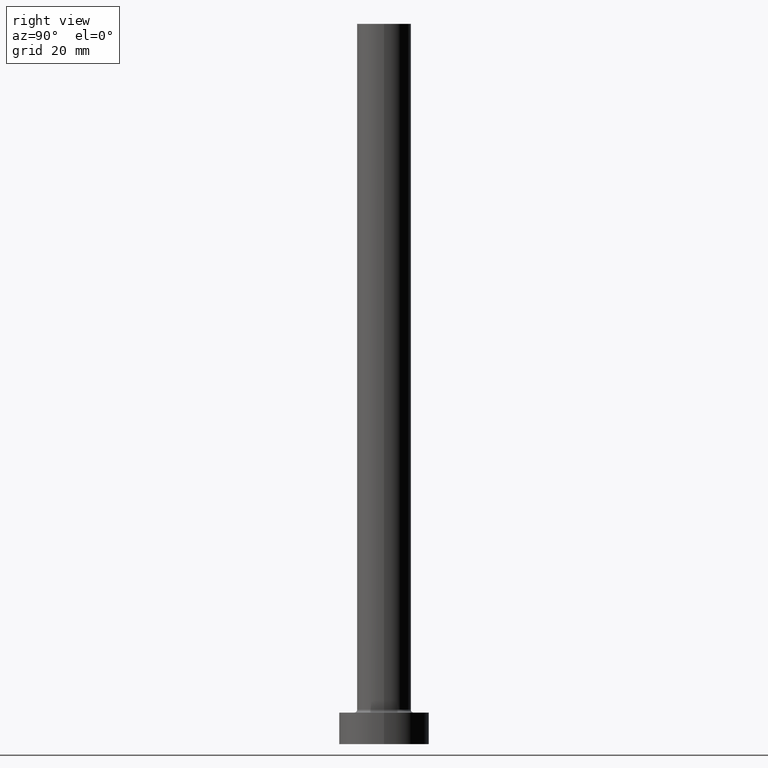
[diagram: clean part render]
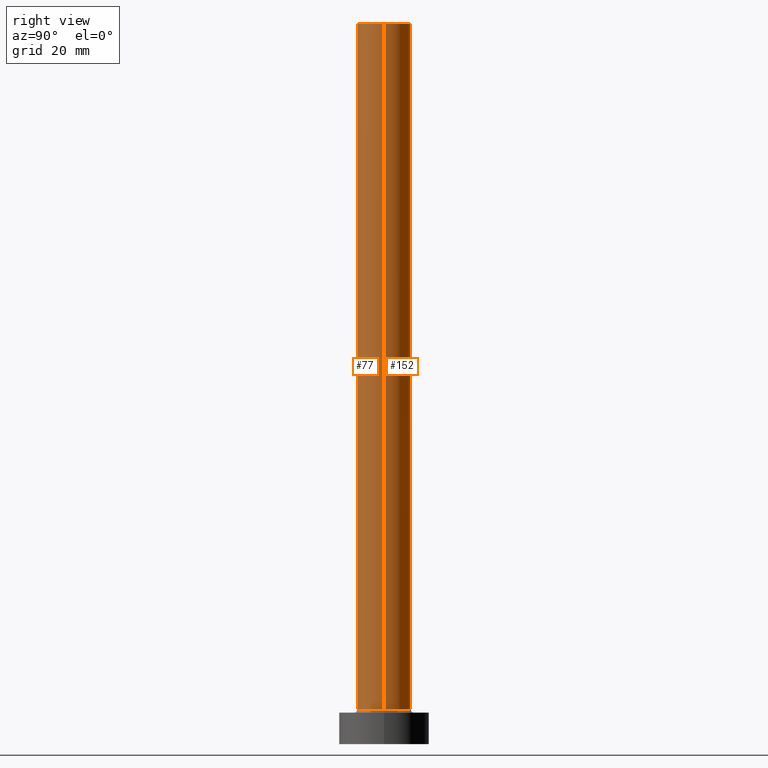
[diagram: same view with one multi-face feature highlighted, each face labeled with its STEP entity id]
A machine part, right view. The highlighted faces form ONE feature: a constant-radius fillet chain: 2 tangent blend faces with common blend radius 6 mm. The faces share edges in the B-rep.
Their STEP definitions:
[1] entity #77 (Cylinder):
#2 = CARTESIAN_POINT ( 'NONE',  ( 0.000000000000000000, 0.000000000000000000, 160.0000000000000000 ) ) ;
#3 = CARTESIAN_POINT ( 'NONE',  ( 0.000000000000000000, 0.000000000000000000, 7.700000000000012612 ) ) ;
#37 = VECTOR ( 'NONE', #140, 1000.000000000000000 ) ;
#68 = DIRECTION ( 'NONE',  ( 0.000000000000000000, 0.000000000000000000, 1.000000000000000000 ) ) ;
#72 = LINE ( 'NONE', #358, #37 ) ;
#77 = ADVANCED_FACE ( 'NONE', ( #130 ), #309, .T. ) ;
#88 = DIRECTION ( 'NONE',  ( 1.000000000000000000, 0.000000000000000000, 0.000000000000000000 ) ) ;
#102 = CARTESIAN_POINT ( 'NONE',  ( 6.000000000000000888, 7.347880794884120722E-16, 160.0000000000000000 ) ) ;
#103 = EDGE_CURVE ( 'NONE', #192, #104, #444, .T. ) ;
#104 = VERTEX_POINT ( 'NONE', #102 ) ;
#130 = FACE_OUTER_BOUND ( 'NONE', #454, .T. ) ;
#140 = DIRECTION ( 'NONE',  ( -0.000000000000000000, -0.000000000000000000, -1.000000000000000000 ) ) ;
#154 = ORIENTED_EDGE ( 'NONE', *, *, #418, .T. ) ;
#169 = AXIS2_PLACEMENT_3D ( 'NONE', #350, #311, #450 ) ;
#174 = VERTEX_POINT ( 'NONE', #290 ) ;
#192 = VERTEX_POINT ( 'NONE', #229 ) ;
#218 = CARTESIAN_POINT ( 'NONE',  ( 6.000000000000000888, 7.347880794884120722E-16, 160.0000000000000000 ) ) ;
#225 = EDGE_CURVE ( 'NONE', #104, #281, #455, .T. ) ;
#229 = CARTESIAN_POINT ( 'NONE',  ( -6.000000000000000888, 0.000000000000000000, 160.0000000000000000 ) ) ;
#281 = VERTEX_POINT ( 'NONE', #330 ) ;
#290 = CARTESIAN_POINT ( 'NONE',  ( -6.000000000000000888, 0.000000000000000000, 7.700000000000012612 ) ) ;
#309 = CYLINDRICAL_SURFACE ( 'NONE', #169, 6.000000000000000888 ) ;
#311 = DIRECTION ( 'NONE',  ( -0.000000000000000000, -0.000000000000000000, -1.000000000000000000 ) ) ;
#313 = AXIS2_PLACEMENT_3D ( 'NONE', #3, #404, #88 ) ;
#330 = CARTESIAN_POINT ( 'NONE',  ( 6.000000000000000888, 7.347880794884120722E-16, 7.700000000000012612 ) ) ;
#350 = CARTESIAN_POINT ( 'NONE',  ( 0.000000000000000000, 0.000000000000000000, 160.0000000000000000 ) ) ;
#354 = DIRECTION ( 'NONE',  ( 1.000000000000000000, 0.000000000000000000, 0.000000000000000000 ) ) ;
#358 = CARTESIAN_POINT ( 'NONE',  ( -6.000000000000000888, 0.000000000000000000, 160.0000000000000000 ) ) ;
#375 = VECTOR ( 'NONE', #392, 1000.000000000000000 ) ;
#383 = ORIENTED_EDGE ( 'NONE', *, *, #225, .F. ) ;
#392 = DIRECTION ( 'NONE',  ( -0.000000000000000000, -0.000000000000000000, -1.000000000000000000 ) ) ;
#401 = EDGE_CURVE ( 'NONE', #192, #174, #72, .T. ) ;
#404 = DIRECTION ( 'NONE',  ( 0.000000000000000000, 0.000000000000000000, 1.000000000000000000 ) ) ;
#418 = EDGE_CURVE ( 'NONE', #174, #281, #452, .T. ) ;
#421 = AXIS2_PLACEMENT_3D ( 'NONE', #2, #68, #354 ) ;
#431 = ORIENTED_EDGE ( 'NONE', *, *, #401, .T. ) ;
#444 = CIRCLE ( 'NONE', #421, 6.000000000000000888 ) ;
#448 = ORIENTED_EDGE ( 'NONE', *, *, #103, .F. ) ;
#450 = DIRECTION ( 'NONE',  ( -1.000000000000000000, 0.000000000000000000, 0.000000000000000000 ) ) ;
#452 = CIRCLE ( 'NONE', #313, 6.000000000000000888 ) ;
#454 = EDGE_LOOP ( 'NONE', ( #383, #448, #431, #154 ) ) ;
#455 = LINE ( 'NONE', #218, #375 ) ;
[2] entity #152 (Cylinder):
#24 = DIRECTION ( 'NONE',  ( 0.000000000000000000, 0.000000000000000000, 1.000000000000000000 ) ) ;
#37 = VECTOR ( 'NONE', #140, 1000.000000000000000 ) ;
#45 = CARTESIAN_POINT ( 'NONE',  ( 0.000000000000000000, 0.000000000000000000, 160.0000000000000000 ) ) ;
#72 = LINE ( 'NONE', #358, #37 ) ;
#74 = ORIENTED_EDGE ( 'NONE', *, *, #89, .T. ) ;
#89 = EDGE_CURVE ( 'NONE', #281, #174, #297, .T. ) ;
#90 = FACE_OUTER_BOUND ( 'NONE', #436, .T. ) ;
#102 = CARTESIAN_POINT ( 'NONE',  ( 6.000000000000000888, 7.347880794884120722E-16, 160.0000000000000000 ) ) ;
#104 = VERTEX_POINT ( 'NONE', #102 ) ;
#128 = AXIS2_PLACEMENT_3D ( 'NONE', #134, #277, #137 ) ;
#134 = CARTESIAN_POINT ( 'NONE',  ( 0.000000000000000000, 0.000000000000000000, 7.700000000000012612 ) ) ;
#137 = DIRECTION ( 'NONE',  ( 1.000000000000000000, 0.000000000000000000, 0.000000000000000000 ) ) ;
#140 = DIRECTION ( 'NONE',  ( -0.000000000000000000, -0.000000000000000000, -1.000000000000000000 ) ) ;
#149 = DIRECTION ( 'NONE',  ( -0.000000000000000000, -0.000000000000000000, -1.000000000000000000 ) ) ;
#152 = ADVANCED_FACE ( 'NONE', ( #90 ), #196, .T. ) ;
#170 = CIRCLE ( 'NONE', #411, 6.000000000000000888 ) ;
#174 = VERTEX_POINT ( 'NONE', #290 ) ;
#180 = AXIS2_PLACEMENT_3D ( 'NONE', #45, #149, #303 ) ;
#192 = VERTEX_POINT ( 'NONE', #229 ) ;
#196 = CYLINDRICAL_SURFACE ( 'NONE', #180, 6.000000000000000888 ) ;
#202 = DIRECTION ( 'NONE',  ( 1.000000000000000000, 0.000000000000000000, 0.000000000000000000 ) ) ;
#218 = CARTESIAN_POINT ( 'NONE',  ( 6.000000000000000888, 7.347880794884120722E-16, 160.0000000000000000 ) ) ;
#225 = EDGE_CURVE ( 'NONE', #104, #281, #455, .T. ) ;
#229 = CARTESIAN_POINT ( 'NONE',  ( -6.000000000000000888, 0.000000000000000000, 160.0000000000000000 ) ) ;
#265 = ORIENTED_EDGE ( 'NONE', *, *, #373, .F. ) ;
#277 = DIRECTION ( 'NONE',  ( 0.000000000000000000, 0.000000000000000000, 1.000000000000000000 ) ) ;
#281 = VERTEX_POINT ( 'NONE', #330 ) ;
#290 = CARTESIAN_POINT ( 'NONE',  ( -6.000000000000000888, 0.000000000000000000, 7.700000000000012612 ) ) ;
#292 = ORIENTED_EDGE ( 'NONE', *, *, #225, .T. ) ;
#297 = CIRCLE ( 'NONE', #128, 6.000000000000000888 ) ;
#303 = DIRECTION ( 'NONE',  ( -1.000000000000000000, 0.000000000000000000, 0.000000000000000000 ) ) ;
#310 = CARTESIAN_POINT ( 'NONE',  ( 0.000000000000000000, 0.000000000000000000, 160.0000000000000000 ) ) ;
#330 = CARTESIAN_POINT ( 'NONE',  ( 6.000000000000000888, 7.347880794884120722E-16, 7.700000000000012612 ) ) ;
#331 = ORIENTED_EDGE ( 'NONE', *, *, #401, .F. ) ;
#358 = CARTESIAN_POINT ( 'NONE',  ( -6.000000000000000888, 0.000000000000000000, 160.0000000000000000 ) ) ;
#373 = EDGE_CURVE ( 'NONE', #104, #192, #170, .T. ) ;
#375 = VECTOR ( 'NONE', #392, 1000.000000000000000 ) ;
#392 = DIRECTION ( 'NONE',  ( -0.000000000000000000, -0.000000000000000000, -1.000000000000000000 ) ) ;
#401 = EDGE_CURVE ( 'NONE', #192, #174, #72, .T. ) ;
#411 = AXIS2_PLACEMENT_3D ( 'NONE', #310, #24, #202 ) ;
#436 = EDGE_LOOP ( 'NONE', ( #265, #292, #74, #331 ) ) ;
#455 = LINE ( 'NONE', #218, #375 ) ;